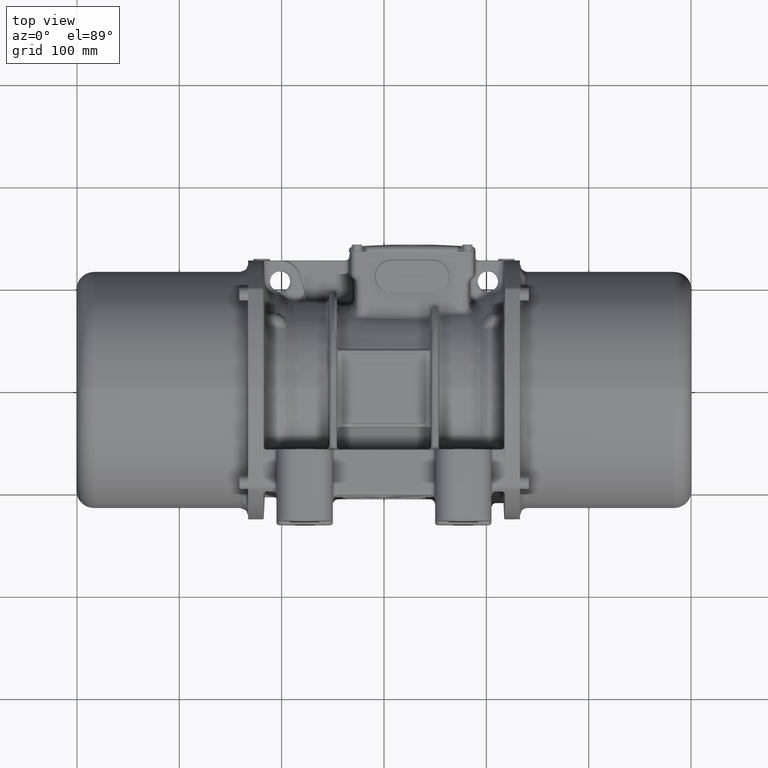
[diagram: clean part render]
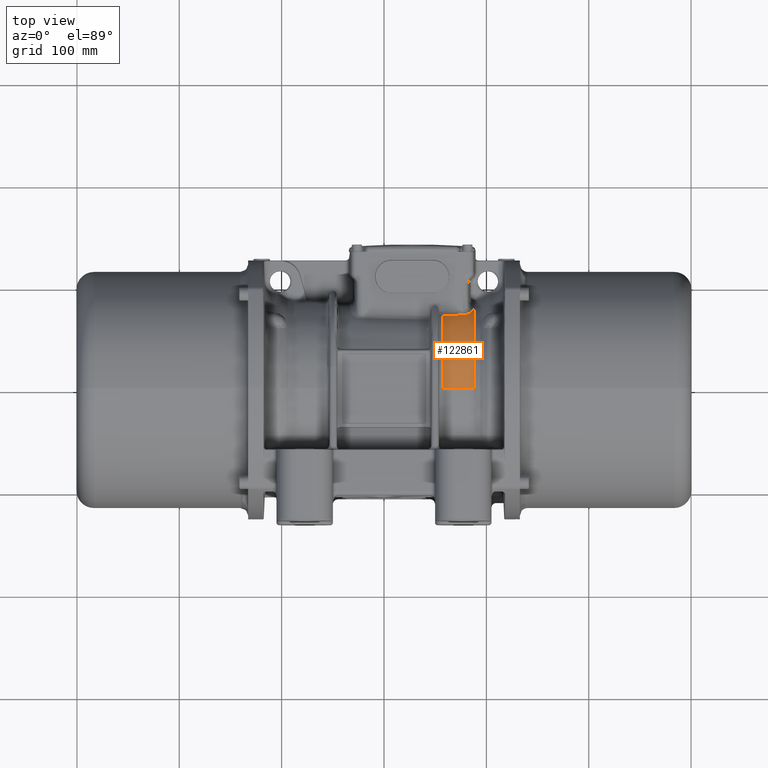
[diagram: same view with one face highlighted and labeled with its STEP entity id]
A machine part, top view. The second image highlights one B-rep face of the part: STEP entity #122861.
In plain terms, the highlighted cylindrical surface (partial cylindrical patch) has radius 88 mm, axis along (-1, 0, 0).
Its self-contained STEP definition (entity closure, byte-faithful):
#4714 = EDGE_CURVE ( 'NONE', #121843, #118053, #125177, .T. ) ;
#6789 = CARTESIAN_POINT ( 'NONE',  ( 77.87979785199996700, 72.45152043300001300, 49.94777391000000200 ) ) ;
#7245 = CARTESIAN_POINT ( 'NONE',  ( 86.15941192300000800, 75.91101641700001300, 44.51839210900000400 ) ) ;
#7429 = CARTESIAN_POINT ( 'NONE',  ( 57.49999999982907900, 71.71825440989511000, 50.99501922164306900 ) ) ;
#8161 = CARTESIAN_POINT ( 'NONE',  ( 85.14276673199998400, 75.02060169000000700, 46.00255151700000100 ) ) ;
#9457 = LINE ( 'NONE', #68339, #102850 ) ;
#10763 = EDGE_CURVE ( 'NONE', #118053, #56790, #98459, .T. ) ;
#15445 = CARTESIAN_POINT ( 'NONE',  ( 57.50000000000000700, 1.485339629070381300E-010, -6.494804694057165800E-010 ) ) ;
#17754 = EDGE_CURVE ( 'NONE', #42436, #133761, #103290, .T. ) ;
#24007 = DIRECTION ( 'NONE',  ( -1.000000000000000000, 0.0000000000000000000, 0.0000000000000000000 ) ) ;
#27697 = CARTESIAN_POINT ( 'NONE',  ( 80.82996781699998200, 72.99065269500002300, 49.15680046599999300 ) ) ;
#28165 = CARTESIAN_POINT ( 'NONE',  ( 79.54987984100000600, 72.69230458599999200, 49.59676011200000500 ) ) ;
#29558 = CARTESIAN_POINT ( 'NONE',  ( 78.55945098300000500, 72.52499504700000400, 49.84138974499999400 ) ) ;
#30688 = CARTESIAN_POINT ( 'NONE',  ( 88.16025403800001900, 1.485339629070381300E-010, -6.494804694057165800E-010 ) ) ;
#35015 = AXIS2_PLACEMENT_3D ( 'NONE', #66046, #100030, #78599 ) ;
#38931 = CARTESIAN_POINT ( 'NONE',  ( 85.85407508800000200, 75.61069429800001300, 45.02608501600001000 ) ) ;
#39746 = AXIS2_PLACEMENT_3D ( 'NONE', #15445, #101174, #58742 ) ;
#41367 = CARTESIAN_POINT ( 'NONE',  ( 70.61199596790848400, 72.13253124264967700, 50.40987358116639400 ) ) ;
#41426 = DIRECTION ( 'NONE',  ( -1.000000000000000000, 0.0000000000000000000, 0.0000000000000000000 ) ) ;
#42203 = EDGE_LOOP ( 'NONE', ( #119931, #106191, #113058, #57865, #77167, #54368 ) ) ;
#42436 = VERTEX_POINT ( 'NONE', #7429 ) ;
#51065 = CARTESIAN_POINT ( 'NONE',  ( 87.38844504999998700, 78.05978922898162900, 40.62842976999043300 ) ) ;
#52142 = CARTESIAN_POINT ( 'NONE',  ( 77.17899845299999100, 72.42076182886461300, 49.99233197390655200 ) ) ;
#54368 = ORIENTED_EDGE ( 'NONE', *, *, #17754, .T. ) ;
#56790 = VERTEX_POINT ( 'NONE', #105931 ) ;
#57865 = ORIENTED_EDGE ( 'NONE', *, *, #61490, .F. ) ;
#58742 = DIRECTION ( 'NONE',  ( 1.577021341787639400E-016, 0.0000000000000000000, -1.000000000000000000 ) ) ;
#61490 = EDGE_CURVE ( 'NONE', #77137, #56790, #84327, .T. ) ;
#63972 = B_SPLINE_CURVE_WITH_KNOTS ( 'NONE', 3,
 ( #104322, #126278, #41367, #52142 ),
 .UNSPECIFIED., .F., .F.,
 ( 4, 4 ),
 ( 0.0000000000000000000, 1.000000000000000000 ),
 .UNSPECIFIED. ) ;
#66046 = CARTESIAN_POINT ( 'NONE',  ( 88.16025403800001900, 1.485339629070381300E-010, -6.494804694057165800E-010 ) ) ;
#68339 = CARTESIAN_POINT ( 'NONE',  ( 88.16025403800001900, 1.485339629070381300E-010, 87.99999999987828400 ) ) ;
#70675 = CARTESIAN_POINT ( 'NONE',  ( 83.35795429700000600, 73.94688464100002500, 47.70653667500000200 ) ) ;
#72050 = CARTESIAN_POINT ( 'NONE',  ( 84.74297157299999100, 74.73620788200000200, 46.46240259200000400 ) ) ;
#73481 = CARTESIAN_POINT ( 'NONE',  ( 88.16025403800000500, 81.82757705304425100, 32.37665260112208200 ) ) ;
#73649 = DIRECTION ( 'NONE',  ( 0.0000000000000000000, 0.0000000000000000000, 1.000000000000000000 ) ) ;
#77137 = VERTEX_POINT ( 'NONE', #79089 ) ;
#77167 = ORIENTED_EDGE ( 'NONE', *, *, #110533, .F. ) ;
#78599 = DIRECTION ( 'NONE',  ( 0.0000000000000000000, 0.0000000000000000000, 1.000000000000000000 ) ) ;
#79089 = CARTESIAN_POINT ( 'NONE',  ( 77.17899845299999100, 72.42076182886461300, 49.99233197390655200 ) ) ;
#81391 = CARTESIAN_POINT ( 'NONE',  ( 83.84624395100001900, 74.20100095600000100, 47.31032494999999500 ) ) ;
#81867 = CARTESIAN_POINT ( 'NONE',  ( 82.30403821099999100, 73.47204980899999800, 48.43595457899999700 ) ) ;
#82786 = CARTESIAN_POINT ( 'NONE',  ( 86.67636189599997500, 76.51889146500001000, 43.46526082300000100 ) ) ;
#83922 = AXIS2_PLACEMENT_3D ( 'NONE', #30688, #41426, #73649 ) ;
#84123 = CARTESIAN_POINT ( 'NONE',  ( 88.16025403800001900, 1.485339629070381300E-010, 87.99999999987828400 ) ) ;
#84327 = B_SPLINE_CURVE_WITH_KNOTS ( 'NONE', 3,
 ( #135925, #6789, #29558, #28165, #134558, #104175, #27697, #114469, #81867, #114929, #70675, #81391, #102804, #72050, #8161, #38931, #7245, #82786, #134998, #113104, #113562, #51065 ),
 .UNSPECIFIED., .F., .F.,
 ( 4, 2, 2, 2, 2, 2, 2, 2, 2, 2, 4 ),
 ( 0.0000000000000000000, 0.1249999999999998800, 0.1875000000000001100, 0.2499999999999997500, 0.3750000000000002800, 0.4374999999999998300, 0.5000000000000001100, 0.6250000000000023300, 0.7500000000000014400, 0.8750000000000008900, 1.000000000000000000 ),
 .UNSPECIFIED. ) ;
#98219 = CARTESIAN_POINT ( 'NONE',  ( 87.38844504999998700, 78.05978922898162900, 40.62842976999043300 ) ) ;
#98459 = B_SPLINE_CURVE_WITH_KNOTS ( 'NONE', 3,
 ( #131301, #129940, #108952, #98219 ),
 .UNSPECIFIED., .F., .F.,
 ( 4, 4 ),
 ( 0.0000000000000000000, 1.000000000000000000 ),
 .UNSPECIFIED. ) ;
#98505 = EDGE_CURVE ( 'NONE', #121843, #133761, #9457, .T. ) ;
#100030 = DIRECTION ( 'NONE',  ( -1.000000000000000000, 0.0000000000000000000, 0.0000000000000000000 ) ) ;
#101174 = DIRECTION ( 'NONE',  ( 1.000000000000000000, 5.444941550840428400E-017, 1.500840259218386500E-016 ) ) ;
#102804 = CARTESIAN_POINT ( 'NONE',  ( 84.07870481099998000, 74.33210566500002900, 47.10416089099999900 ) ) ;
#102850 = VECTOR ( 'NONE', #24007, 1000.000000000000000 ) ;
#103290 = CIRCLE ( 'NONE', #39746, 88.00000000052776300 ) ;
#104175 = CARTESIAN_POINT ( 'NONE',  ( 80.51607985299999400, 72.90697550199999500, 49.28073273600001200 ) ) ;
#104322 = CARTESIAN_POINT ( 'NONE',  ( 57.49999999982907900, 71.71825440989511000, 50.99501922164306900 ) ) ;
#105931 = CARTESIAN_POINT ( 'NONE',  ( 87.38844504999998700, 78.05978922898162900, 40.62842976999043300 ) ) ;
#106191 = ORIENTED_EDGE ( 'NONE', *, *, #4714, .T. ) ;
#108952 = CARTESIAN_POINT ( 'NONE',  ( 87.67878696171980800, 79.51009121947164700, 37.84195073727109100 ) ) ;
#110533 = EDGE_CURVE ( 'NONE', #42436, #77137, #63972, .T. ) ;
#111482 = FACE_OUTER_BOUND ( 'NONE', #42203, .T. ) ;
#113058 = ORIENTED_EDGE ( 'NONE', *, *, #10763, .T. ) ;
#113104 = CARTESIAN_POINT ( 'NONE',  ( 87.21481596900002800, 77.44708471600000600, 41.78952631900001100 ) ) ;
#113562 = CARTESIAN_POINT ( 'NONE',  ( 87.32740180899999400, 77.75486896500001400, 41.21427597800000300 ) ) ;
#114469 = CARTESIAN_POINT ( 'NONE',  ( 81.73756961100002600, 73.26225685400001500, 48.75189608899999200 ) ) ;
#114929 = CARTESIAN_POINT ( 'NONE',  ( 83.10092618599999500, 73.82338079900000600, 47.89733183800001400 ) ) ;
#115912 = CARTESIAN_POINT ( 'NONE',  ( 57.49999999999999300, 1.679302248731430800E-030, 87.99999999993913500 ) ) ;
#118053 = VERTEX_POINT ( 'NONE', #73481 ) ;
#119931 = ORIENTED_EDGE ( 'NONE', *, *, #98505, .F. ) ;
#121843 = VERTEX_POINT ( 'NONE', #84123 ) ;
#122861 = ADVANCED_FACE ( 'NONE', ( #111482 ), #133156, .T. ) ;
#125177 = CIRCLE ( 'NONE', #35015, 88.00000000052776300 ) ;
#126278 = CARTESIAN_POINT ( 'NONE',  ( 64.05229760045044400, 71.89688512656694300, 50.74380032589388600 ) ) ;
#129940 = CARTESIAN_POINT ( 'NONE',  ( 87.93605662438648100, 80.75734981172385600, 35.08150610019855300 ) ) ;
#131301 = CARTESIAN_POINT ( 'NONE',  ( 88.16025403800000500, 81.82757705304425100, 32.37665260112208200 ) ) ;
#133156 = CYLINDRICAL_SURFACE ( 'NONE', #83922, 88.00000000052776300 ) ;
#133761 = VERTEX_POINT ( 'NONE', #115912 ) ;
#134558 = CARTESIAN_POINT ( 'NONE',  ( 79.87515806299998600, 72.75765147200000600, 49.50092775000000200 ) ) ;
#134998 = CARTESIAN_POINT ( 'NONE',  ( 86.88802601199999700, 76.82664215499998800, 42.91948853399999600 ) ) ;
#135925 = CARTESIAN_POINT ( 'NONE',  ( 77.17899845299999100, 72.42076182886461300, 49.99233197390655200 ) ) ;